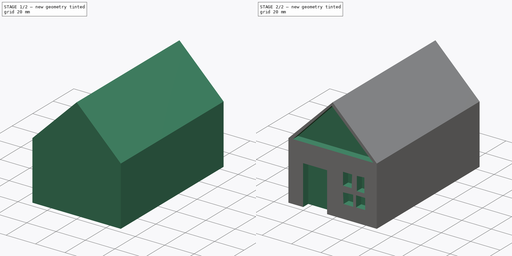
[diagram: build sequence overview — one tinted view per stage of 2, left to right]
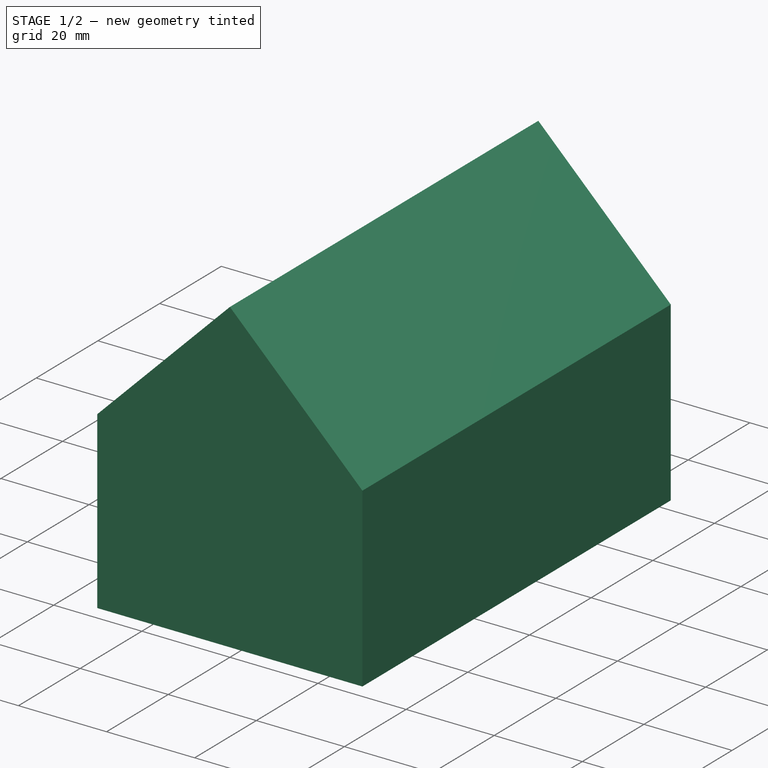
[diagram: stage 1 of 2 — iso view after this stage's code; geometry added in this stage tinted green]
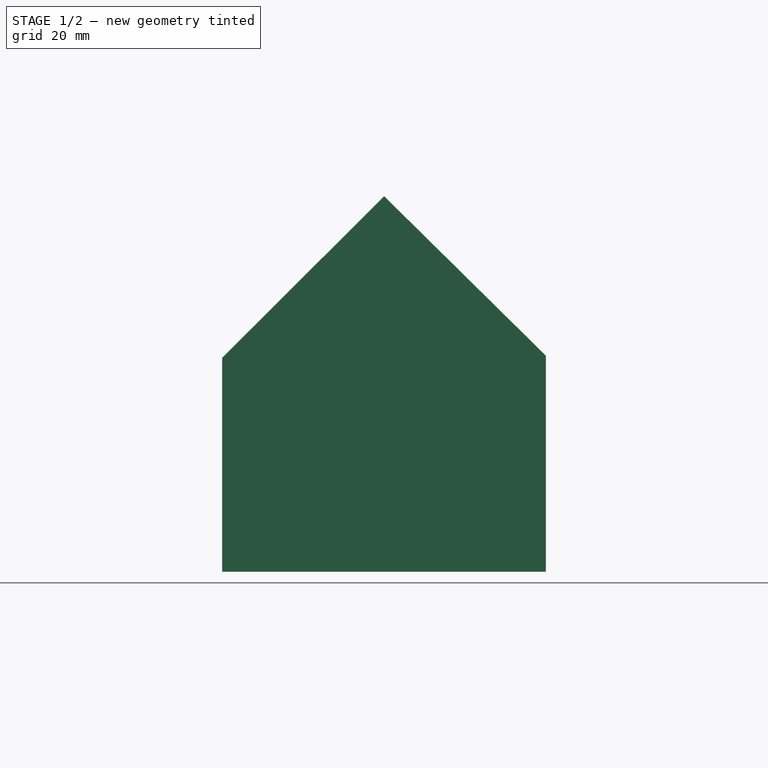
[diagram: stage 1 of 2 — front view after this stage's code; geometry added in this stage tinted green]
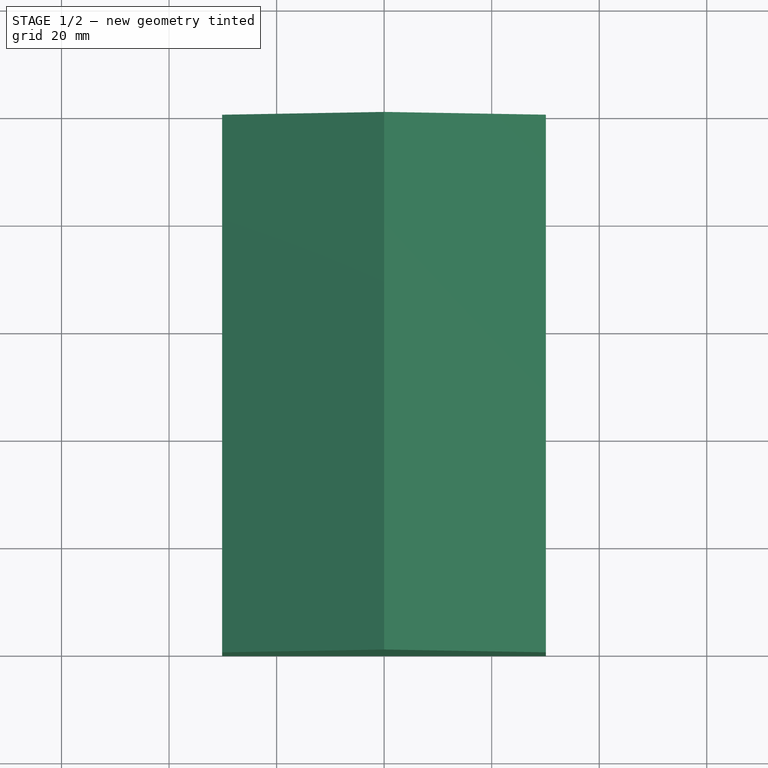
[diagram: stage 1 of 2 — top view after this stage's code; geometry added in this stage tinted green]
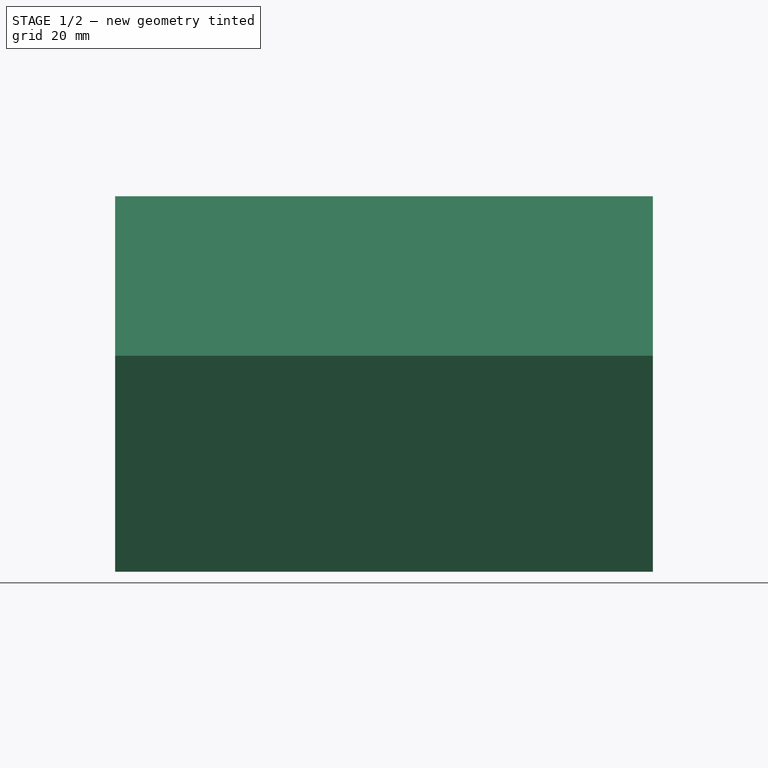
[diagram: stage 1 of 2 — right view after this stage's code; geometry added in this stage tinted green]
FCSTD DOCUMENT  (FreeCAD 0.21R33694 (Git))
Label: OJT1_T017_Casa
License: All rights reserved
LicenseURL: https://en.wikipedia.org/wiki/All_rights_reserved
objects: Sketcher::SketchObject×3, PartDesign::Pad×1, PartDesign::Pocket×1, PartDesign::Body×1
note: 8 computed .brp shape members not serialized (recipe doc carries the construction recipe); baked Part::Feature solids carry a one-line shape summary decoded from their .brp

FEATURE [Sketcher::SketchObject] Sketch
  FullyConstrained = false
  MapMode = 5
  Placement = pos=(0,0,0) rot=(1,0,0;1.5708rad)
  Support = -> [XZ_Plane]
  sketch-geometry (5):
    g0: LineSegment StartX=-30.1315 StartY=0 StartZ=0 EndX=-30.1315 EndY=39.7661 EndZ=0
    g1: LineSegment StartX=-30.1315 StartY=39.7661 StartZ=0 EndX=0 EndY=69.8465 EndZ=0
    g2: LineSegment StartX=0 StartY=69.8465 StartZ=0 EndX=30.081 EndY=40.184 EndZ=0
    g3: LineSegment StartX=30.081 StartY=40.184 StartZ=0 EndX=30.081 EndY=0 EndZ=0
    g4: LineSegment StartX=30.081 StartY=0 StartZ=0 EndX=-30.1315 EndY=0 EndZ=0
  constraints (9):
    c: Coincident(g0,g1)
    c: PointOnObject(g1,g-2)
    c: Coincident(g1,g2)
    c: Coincident(g2,g3)
    c: PointOnObject(g3,g-1)
    c: Vertical(g3)
    c: Coincident(g3,g4)
    c: Coincident(g4,g0)
    c: Horizontal(g4)
FEATURE [PartDesign::Pad] Pad
  Direction = (0,-1,2e-16)
  Length = 100
  Length2 = 10
  Placement = pos=(0,0,0) rot=(1,0,0;1.5708rad)
  Profile = -> Sketch
  ReferenceAxis = -> Sketch [N_Axis]
  Type = 0
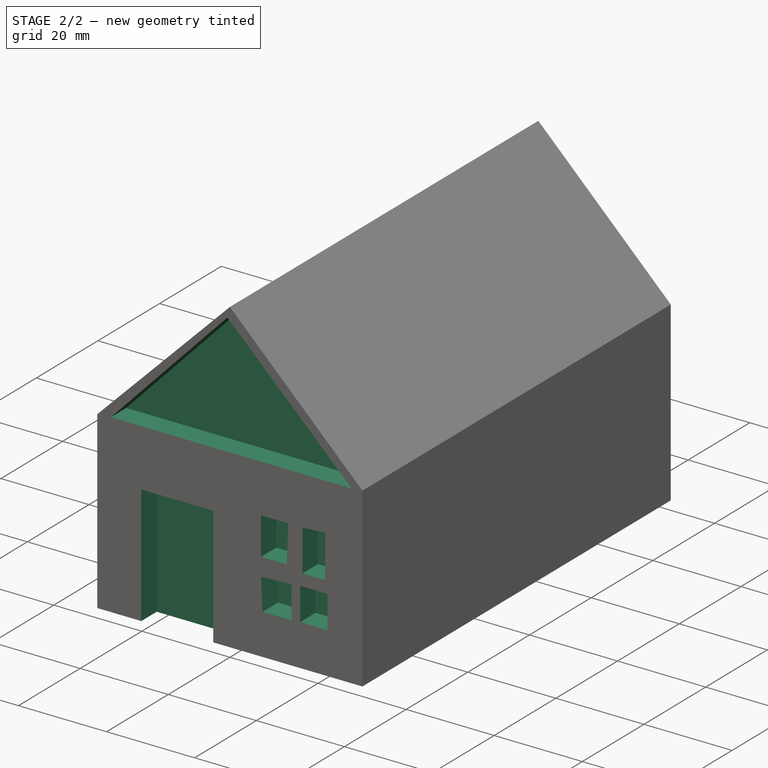
[diagram: stage 2 of 2 — iso view after this stage's code; geometry added in this stage tinted green]
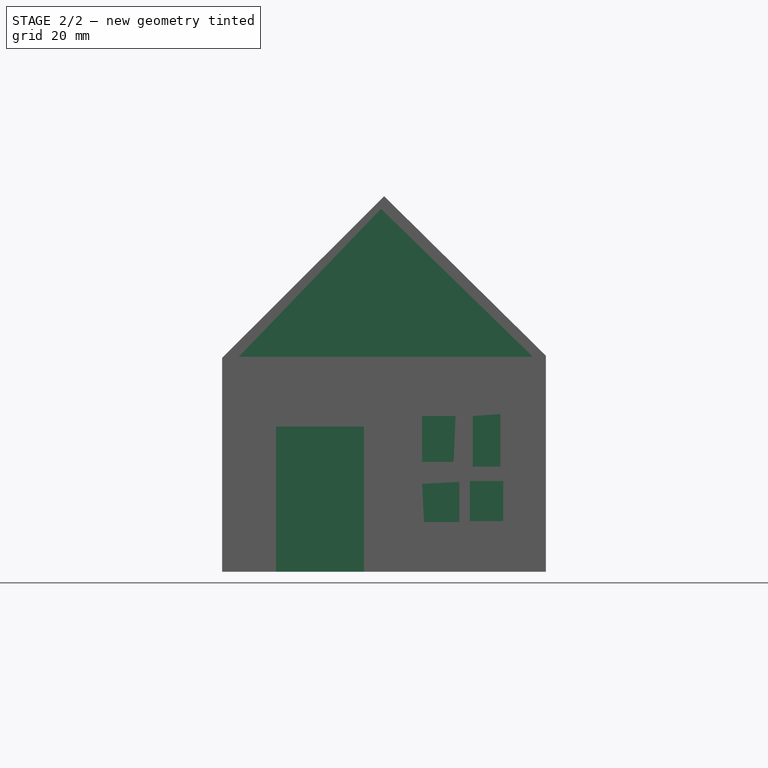
[diagram: stage 2 of 2 — front view after this stage's code; geometry added in this stage tinted green]
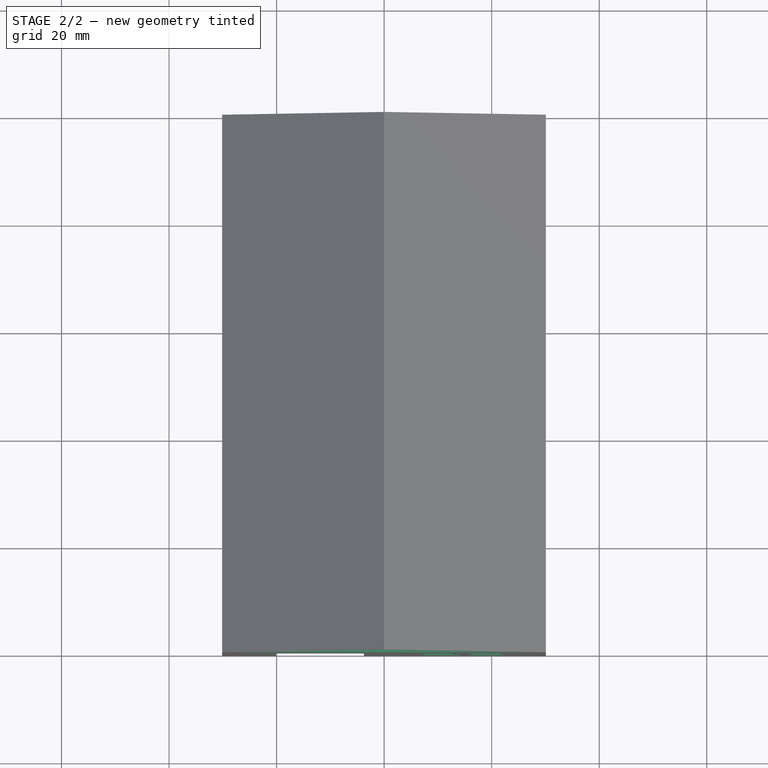
[diagram: stage 2 of 2 — top view after this stage's code; geometry added in this stage tinted green]
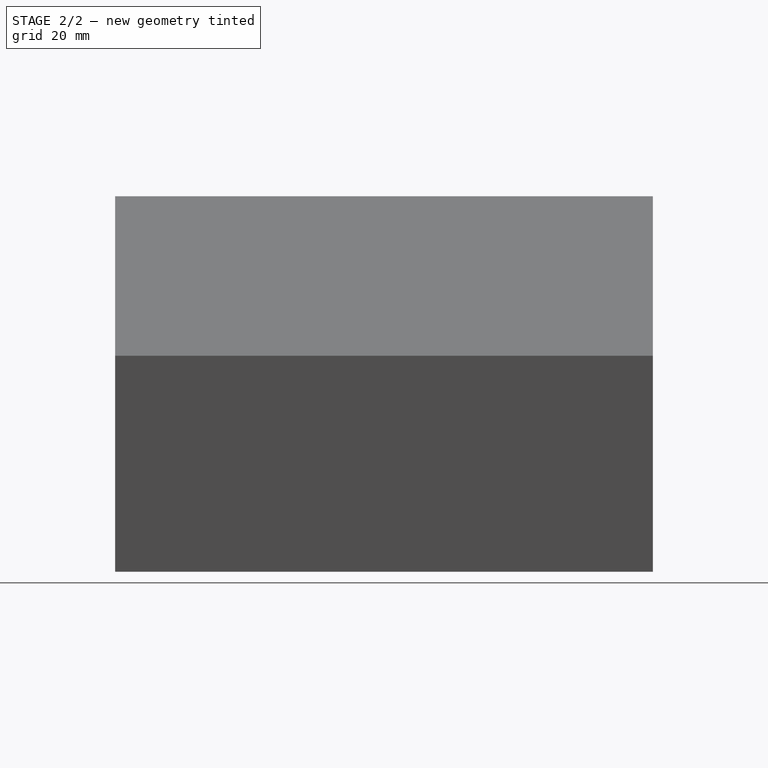
[diagram: stage 2 of 2 — right view after this stage's code; geometry added in this stage tinted green]
FEATURE [Sketcher::SketchObject] Sketch001
  FullyConstrained = true
  MapMode = 5
  Placement = pos=(0,-100,2.22e-14) rot=(1,0,0;1.5708rad)
  Support = -> [Pad]
FEATURE [Sketcher::SketchObject] Sketch002
  FullyConstrained = false
  MapMode = 5
  Placement = pos=(0,-100,2.22e-14) rot=(1,0,0;1.5708rad)
  Support = -> [Pad]
  sketch-geometry (23):
    g0: LineSegment StartX=-20.1149 StartY=0 StartZ=0 EndX=-20.1149 EndY=27.0151 EndZ=0
    g1: LineSegment StartX=-20.1149 StartY=27.0151 StartZ=0 EndX=-3.77389 EndY=27.0151 EndZ=0
    g2: LineSegment StartX=-3.77389 StartY=27.0151 StartZ=0 EndX=-3.77389 EndY=0 EndZ=0
    g3: LineSegment StartX=-3.77389 StartY=0 StartZ=0 EndX=-20.1149 EndY=0 EndZ=0
    g4: LineSegment StartX=-27.0421 StartY=39.9813 StartZ=0 EndX=27.6648 EndY=39.9813 EndZ=0
    g5: LineSegment StartX=27.6648 StartY=39.9813 StartZ=0 EndX=-0.576733 EndY=67.5124 EndZ=0
    g6: LineSegment StartX=-0.576733 StartY=67.5124 StartZ=0 EndX=-27.0421 EndY=39.9813 EndZ=0
    g7: LineSegment StartX=7.06092 StartY=28.9689 StartZ=0 EndX=7.06092 EndY=20.4431 EndZ=0
    g8: LineSegment StartX=7.06092 StartY=20.4431 StartZ=0 EndX=12.9224 EndY=20.4431 EndZ=0
    g9: LineSegment StartX=12.9224 StartY=20.4431 StartZ=0 EndX=13.2776 EndY=28.9689 EndZ=0
    g10: LineSegment StartX=13.2776 StartY=28.9689 StartZ=0 EndX=7.06092 EndY=28.9689 EndZ=0
    g11: LineSegment StartX=16.4748 StartY=28.9689 StartZ=0 EndX=16.4748 EndY=19.555 EndZ=0
    g12: LineSegment StartX=16.4748 StartY=19.555 StartZ=0 EndX=21.6258 EndY=19.555 EndZ=0
    g13: LineSegment StartX=21.6258 StartY=19.555 StartZ=0 EndX=21.6258 EndY=29.3241 EndZ=0
    g14: LineSegment StartX=21.6258 StartY=29.3241 StartZ=0 EndX=16.4748 EndY=28.9689 EndZ=0
    g15: LineSegment StartX=7.06092 StartY=16.3579 StartZ=0 EndX=7.41616 EndY=9.25308 EndZ=0
    g16: LineSegment StartX=7.41616 StartY=9.25308 StartZ=0 EndX=13.9881 EndY=9.25308 EndZ=0
    g17: LineSegment StartX=13.9881 StartY=9.25308 StartZ=0 EndX=13.9881 EndY=16.7131 EndZ=0
    g18: LineSegment StartX=13.9881 StartY=16.7131 StartZ=0 EndX=7.06092 EndY=16.3579 EndZ=0
    g19: LineSegment StartX=15.9419 StartY=16.8907 StartZ=0 EndX=15.9419 EndY=9.4307 EndZ=0
    g20: LineSegment StartX=15.9419 StartY=9.4307 StartZ=0 EndX=22.1586 EndY=9.4307 EndZ=0
    g21: LineSegment StartX=22.1586 StartY=9.4307 StartZ=0 EndX=22.1586 EndY=16.8907 EndZ=0
    g22: LineSegment StartX=22.1586 StartY=16.8907 StartZ=0 EndX=15.9419 EndY=16.8907 EndZ=0
  constraints (41):
    c: PointOnObject(g0,g-1)
    c: Vertical(g0)
    c: Coincident(g0,g1)
    c: Horizontal(g1)
    c: Coincident(g1,g2)
    c: Vertical(g2)
    c: Coincident(g2,g3)
    c: Coincident(g3,g0)
    c: Horizontal(g3)
    c: Horizontal(g4)
    c: Coincident(g4,g5)
    c: Coincident(g5,g6)
    c: Coincident(g6,g4)
    c: Vertical(g7)
    c: Coincident(g7,g8)
    c: Horizontal(g8)
    c: Coincident(g8,g9)
    c: Coincident(g9,g10)
    c: Coincident(g10,g7)
    c: Horizontal(g10)
    c: Vertical(g11)
    c: Coincident(g11,g12)
    c: Horizontal(g12)
    c: Coincident(g12,g13)
    c: Vertical(g13)
    c: Coincident(g13,g14)
    c: Coincident(g14,g11)
    c: Coincident(g15,g16)
    c: Horizontal(g16)
    c: Coincident(g16,g17)
    c: Vertical(g17)
    c: Coincident(g17,g18)
    c: Coincident(g18,g15)
    c: Vertical(g19)
    c: Coincident(g19,g20)
    c: Horizontal(g20)
    c: Coincident(g20,g21)
    c: Vertical(g21)
    c: Coincident(g21,g22)
    c: Coincident(g22,g19)
    c: Horizontal(g22)
FEATURE [PartDesign::Pocket] Pocket
  BaseFeature = -> Pad
  Direction = (0,1,-2e-16)
  Length = 5
  Length2 = 5
  Placement = pos=(0,0,0) rot=(1,0,0;1.5708rad)
  Profile = -> Sketch002
  ReferenceAxis = -> Sketch002 [N_Axis]
  Type = 0
FEATURE [PartDesign::Body] Body
  Group = -> [Sketch,Pad,Sketch001,Sketch002,Pocket]
  Origin = -> Origin
  Tip = -> Pocket
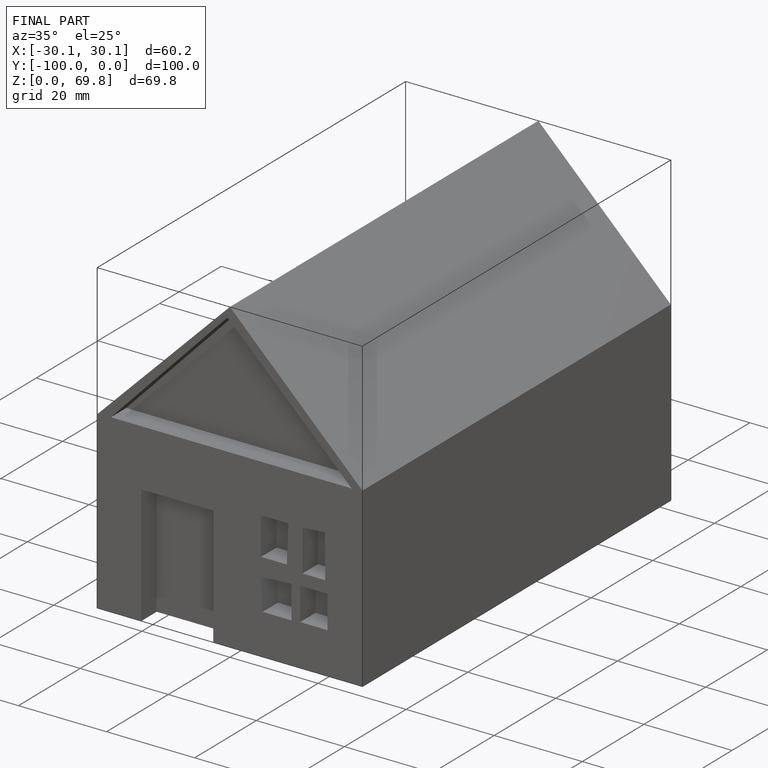
[diagram: finished part — iso view with bounding-box wireframe]
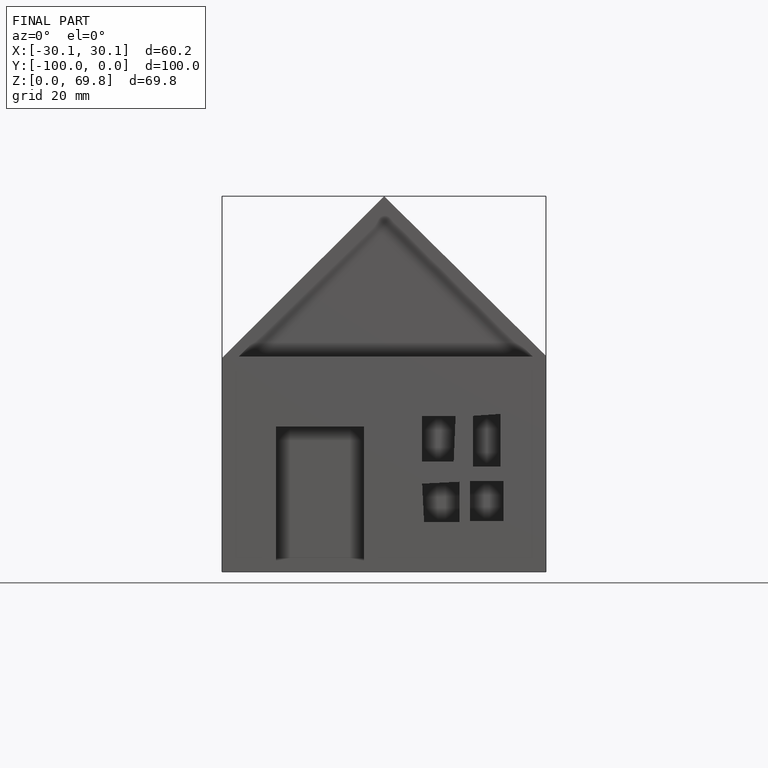
[diagram: finished part — front view with bounding-box wireframe]
